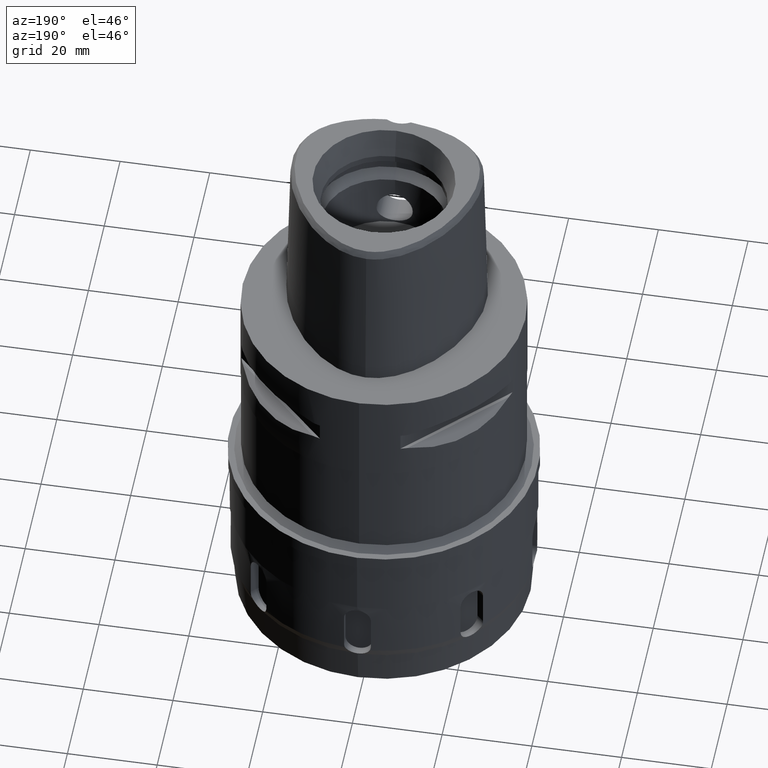
[diagram: clean part render]
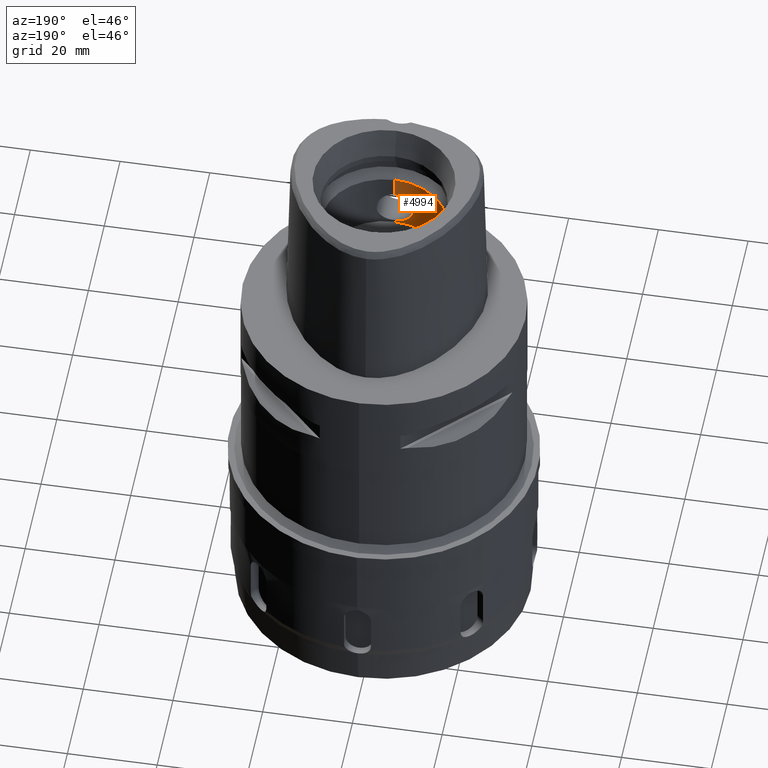
[diagram: same view with one face highlighted and labeled with its STEP entity id]
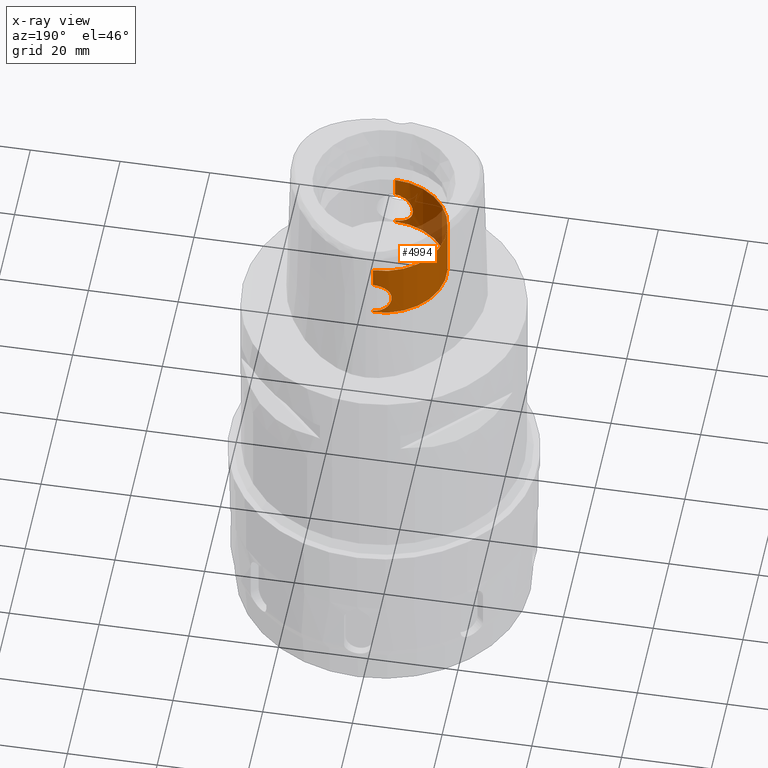
[diagram: x-ray of the same camera — body ghosted, the highlighted face saturated]
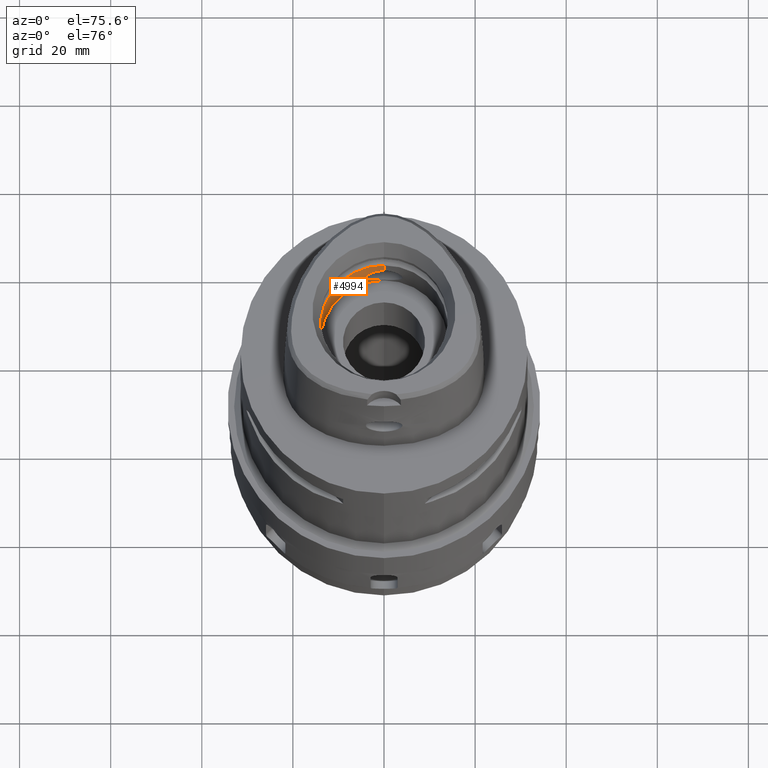
[diagram: same view with one face highlighted and labeled with its STEP entity id]
A machine part, auxiliary view. The second image highlights one B-rep face of the part: STEP entity #4994.
The next image is the same camera in x-ray: the body ghosted, the highlighted face saturated — about 12% of this face is hidden behind the body in this view.
A second angle (auxiliary view) of the same face is appended — the face is thin or edge-on in the first view.
In plain terms, the highlighted cylindrical surface (partial cylindrical patch) has radius 14 mm, axis along (0, 0, -1).
Its self-contained STEP definition (entity closure, byte-faithful):
#1855=CARTESIAN_POINT('',(0.E0,0.E0,1.1E1));
#1856=DIRECTION('',(0.E0,0.E0,-1.E0));
#1857=DIRECTION('',(0.E0,-1.E0,0.E0));
#1858=AXIS2_PLACEMENT_3D('',#1855,#1856,#1857);
#1879=CARTESIAN_POINT('',(0.E0,1.4E1,1.145E1));
#1893=CARTESIAN_POINT('',(0.E0,1.4E1,1.955E1));
#1898=DIRECTION('',(0.E0,0.E0,1.E0));
#1899=VECTOR('',#1898,4.65E0);
#1900=CARTESIAN_POINT('',(0.E0,1.4E1,1.955E1));
#1901=LINE('',#1900,#1899);
#1919=CARTESIAN_POINT('',(0.E0,-1.4E1,1.145E1));
#1924=DIRECTION('',(0.E0,0.E0,1.E0));
#1925=VECTOR('',#1924,4.5E-1);
#1926=CARTESIAN_POINT('',(0.E0,1.4E1,1.1E1));
#1927=LINE('',#1926,#1925);
#1945=CARTESIAN_POINT('',(0.E0,-1.4E1,1.145E1));
#1946=CARTESIAN_POINT('',(-3.549458432831E-1,-1.4E1,1.145E1));
#1947=CARTESIAN_POINT('',(-1.042754851721E0,-1.397339001714E1,
1.154074261713E1));
#1948=CARTESIAN_POINT('',(-2.026111254894E0,-1.386340771269E1,
1.193885130985E1));
#1949=CARTESIAN_POINT('',(-2.888582823887E0,-1.370624524692E1,
1.259386889836E1));
#1950=CARTESIAN_POINT('',(-3.547276737032E0,-1.354689102804E1,
1.344818455671E1));
#1951=CARTESIAN_POINT('',(-3.961309758068E0,-1.342876130106E1,
1.445397342852E1));
#1952=CARTESIAN_POINT('',(-4.094549983967E0,-1.338766229306E1,
1.550325437392E1));
#1953=CARTESIAN_POINT('',(-3.960491431175E0,-1.342898427076E1,
1.654396202046E1));
#1954=CARTESIAN_POINT('',(-3.555608331586E0,-1.354452588466E1,
1.753447150189E1));
#1955=CARTESIAN_POINT('',(-2.909089264456E0,-1.370174900739E1,
1.838538622889E1));
#1956=CARTESIAN_POINT('',(-2.045677787018E0,-1.386078651782E1,
1.905154333074E1));
#1957=CARTESIAN_POINT('',(-1.047337287268E0,-1.397334200505E1,
1.945915948826E1));
#1958=CARTESIAN_POINT('',(-3.562242633827E-1,-1.4E1,1.955E1));
#1959=CARTESIAN_POINT('',(0.E0,-1.4E1,1.955E1));
#1964=DIRECTION('',(0.E0,0.E0,1.E0));
#1965=VECTOR('',#1964,4.65E0);
#1966=CARTESIAN_POINT('',(0.E0,-1.4E1,1.955E1));
#1967=LINE('',#1966,#1965);
#1971=CARTESIAN_POINT('',(0.E0,1.4E1,1.955E1));
#1972=CARTESIAN_POINT('',(-3.549690634577E-1,1.4E1,1.955E1));
#1973=CARTESIAN_POINT('',(-1.042806494325E0,1.397338589456E1,1.945924304486E1));
#1974=CARTESIAN_POINT('',(-2.026117789596E0,1.386340568065E1,1.906114094211E1));
#1975=CARTESIAN_POINT('',(-2.888559999169E0,1.370624954117E1,1.840614639246E1));
#1976=CARTESIAN_POINT('',(-3.547227964283E0,1.354690369564E1,1.755189419327E1));
#1977=CARTESIAN_POINT('',(-3.961278674209E0,1.342877075481E1,1.654612465702E1));
#1978=CARTESIAN_POINT('',(-4.094552161341E0,1.338766158936E1,1.549691772835E1));
#1979=CARTESIAN_POINT('',(-3.960514114599E0,1.342897753841E1,1.445608722881E1));
#1980=CARTESIAN_POINT('',(-3.555616297289E0,1.354452413315E1,1.346553882087E1));
#1981=CARTESIAN_POINT('',(-2.909083907698E0,1.370174998570E1,1.261460877445E1));
#1982=CARTESIAN_POINT('',(-2.045684559300E0,1.386078575858E1,1.194846002449E1));
#1983=CARTESIAN_POINT('',(-1.047316758157E0,1.397334388795E1,1.154083381302E1));
#1984=CARTESIAN_POINT('',(-3.562155131612E-1,1.4E1,1.145E1));
#1985=CARTESIAN_POINT('',(0.E0,1.4E1,1.145E1));
#1990=DIRECTION('',(0.E0,0.E0,1.E0));
#1991=VECTOR('',#1990,4.5E-1);
#1992=CARTESIAN_POINT('',(0.E0,-1.4E1,1.1E1));
#1993=LINE('',#1992,#1991);
#2098=CARTESIAN_POINT('',(0.E0,0.E0,2.42E1));
#2099=DIRECTION('',(0.E0,0.E0,1.E0));
#2100=DIRECTION('',(0.E0,1.E0,0.E0));
#2101=AXIS2_PLACEMENT_3D('',#2098,#2099,#2100);
#3223=CARTESIAN_POINT('',(0.E0,1.4E1,1.1E1));
#3224=CARTESIAN_POINT('',(0.E0,-1.4E1,1.1E1));
#3225=VERTEX_POINT('',#3223);
#3226=VERTEX_POINT('',#3224);
#3227=VERTEX_POINT('',#1879);
#3228=VERTEX_POINT('',#1893);
#3229=CARTESIAN_POINT('',(0.E0,1.4E1,2.42E1));
#3230=VERTEX_POINT('',#3229);
#3231=CARTESIAN_POINT('',(0.E0,-1.4E1,2.42E1));
#3232=VERTEX_POINT('',#3231);
#3233=CARTESIAN_POINT('',(0.E0,-1.4E1,1.955E1));
#3234=VERTEX_POINT('',#3233);
#3235=VERTEX_POINT('',#1919);
#4977=CARTESIAN_POINT('',(0.E0,0.E0,3.99E1));
#4978=DIRECTION('',(0.E0,0.E0,-1.E0));
#4979=DIRECTION('',(0.E0,-1.E0,0.E0));
#4980=AXIS2_PLACEMENT_3D('',#4977,#4978,#4979);
#4981=CYLINDRICAL_SURFACE('',#4980,1.4E1);
#4983=ORIENTED_EDGE('',*,*,#4982,.T.);
#4984=ORIENTED_EDGE('',*,*,#4936,.T.);
#4986=ORIENTED_EDGE('',*,*,#4985,.F.);
#4987=ORIENTED_EDGE('',*,*,#4932,.F.);
#4988=ORIENTED_EDGE('',*,*,#4969,.T.);
#4989=ORIENTED_EDGE('',*,*,#4943,.F.);
#4990=ORIENTED_EDGE('',*,*,#4916,.F.);
#4991=ORIENTED_EDGE('',*,*,#4940,.T.);
#4992=EDGE_LOOP('',(#4983,#4984,#4986,#4987,#4988,#4989,#4990,#4991));
#4993=FACE_OUTER_BOUND('',#4992,.F.);
#1859=CIRCLE('',#1858,1.4E1);
#1960=B_SPLINE_CURVE_WITH_KNOTS('',3,(#1945,#1946,#1947,#1948,#1949,#1950,#1951,
#1952,#1953,#1954,#1955,#1956,#1957,#1958,#1959),.UNSPECIFIED.,.F.,.F.,(4,1,1,1,
1,1,1,1,1,1,1,1,4),(0.E0,8.333333333333E-2,1.666666666667E-1,2.5E-1,
3.333333333333E-1,4.166666666667E-1,5.E-1,5.833333333333E-1,6.666666666667E-1,
7.5E-1,8.333333333333E-1,9.166666666667E-1,1.E0),.UNSPECIFIED.);
#1986=B_SPLINE_CURVE_WITH_KNOTS('',3,(#1971,#1972,#1973,#1974,#1975,#1976,#1977,
#1978,#1979,#1980,#1981,#1982,#1983,#1984,#1985),.UNSPECIFIED.,.F.,.F.,(4,1,1,1,
1,1,1,1,1,1,1,1,4),(0.E0,8.333333333333E-2,1.666666666667E-1,2.5E-1,
3.333333333333E-1,4.166666666667E-1,5.E-1,5.833333333333E-1,6.666666666667E-1,
7.5E-1,8.333333333333E-1,9.166666666667E-1,1.E0),.UNSPECIFIED.);
#2102=CIRCLE('',#2101,1.4E1);
#4916=EDGE_CURVE('',#3226,#3225,#1859,.T.);
#4932=EDGE_CURVE('',#3228,#3230,#1901,.T.);
#4936=EDGE_CURVE('',#3234,#3232,#1967,.T.);
#4940=EDGE_CURVE('',#3226,#3235,#1993,.T.);
#4943=EDGE_CURVE('',#3225,#3227,#1927,.T.);
#4969=EDGE_CURVE('',#3228,#3227,#1986,.T.);
#4982=EDGE_CURVE('',#3235,#3234,#1960,.T.);
#4985=EDGE_CURVE('',#3230,#3232,#2102,.T.);
#4994=ADVANCED_FACE('',(#4993),#4981,.F.);